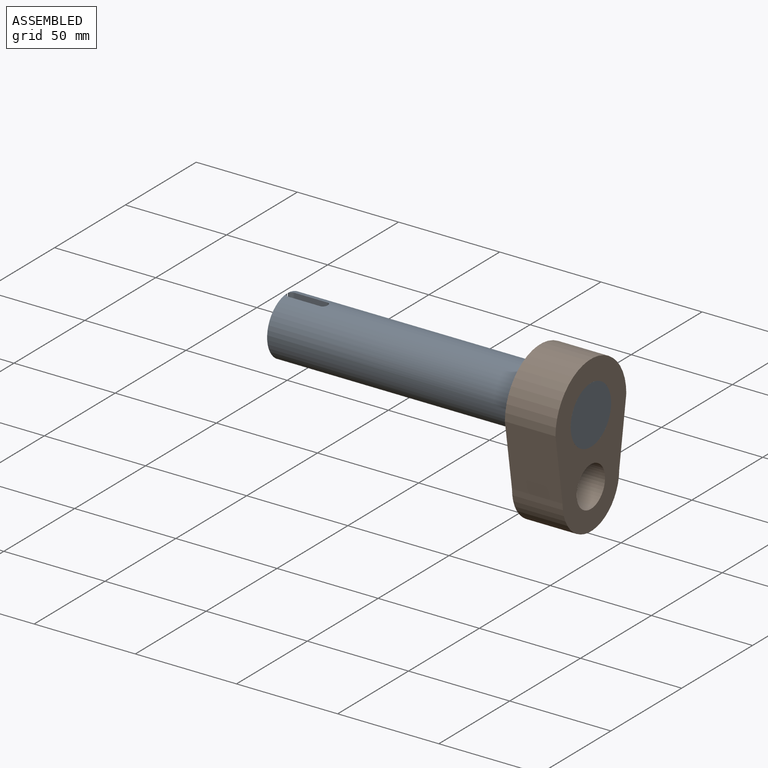
[diagram: assembled view]
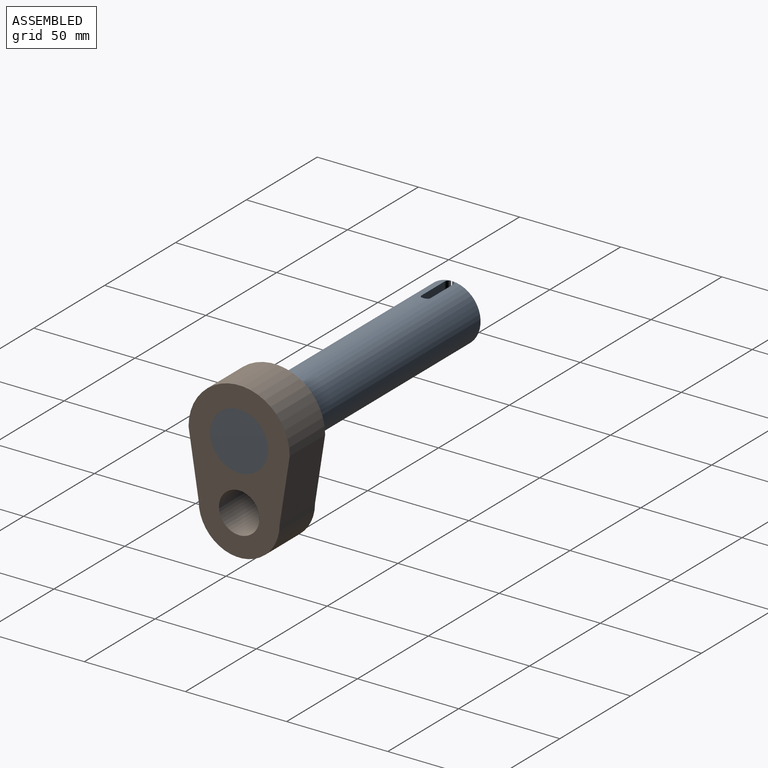
[diagram: assembled view, second angle]
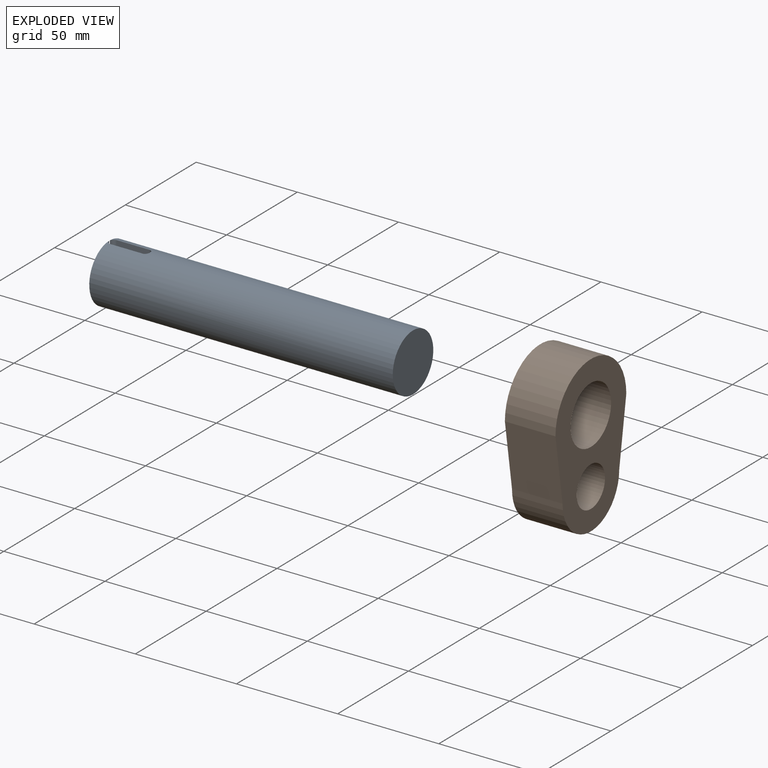
[diagram: exploded view]
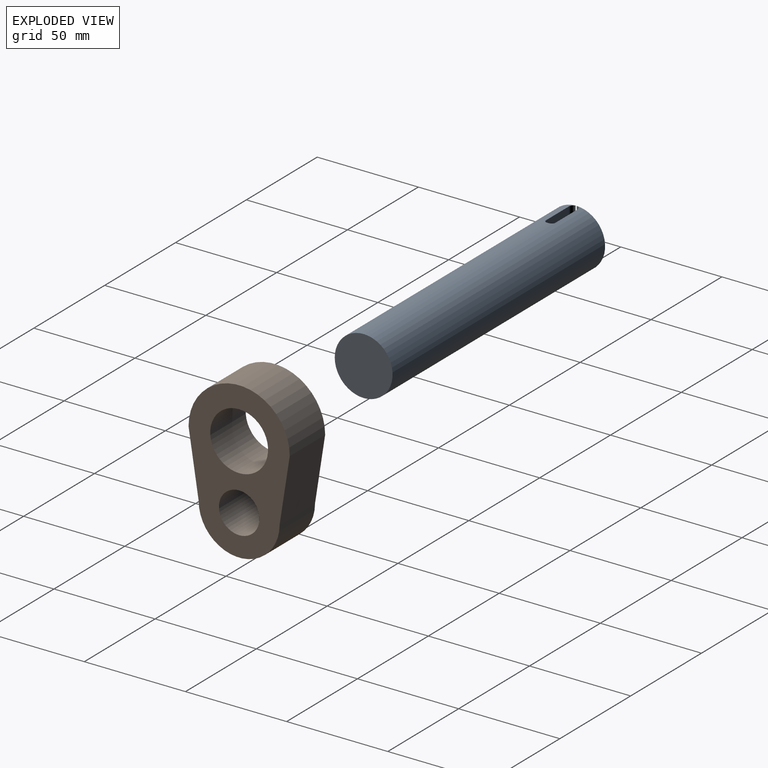
[diagram: exploded view, second angle]
ASSEMBLY  parts=2 mates=2
PART A: 11 faces, bbox 150x28.6x28.6 mm
  f0: cylinder r=14.3mm len=150mm, axis (-1,0,0), area 13390.5mm2, adj f1,f2,f3,f4,f5,f6,f7,f8
  f1: plane 28.6x28.6mm, normal (1,0,0), area 642.4mm2, adj f0
  f2: plane 28.6x28.6mm, normal (-1,0,0), area 639.9mm2, adj f0,f8,f9,f10
  f3: plane 5x0.5mm, normal (-1,0,0), area 2.5mm2, adj f0,f4,f7,f10
  f4: cylinder r=2mm len=5mm, axis (0,0,1), area 15.4mm2, adj f0,f3,f5,f10
  f5: plane 16x4.82mm, normal (0,-1,0), area 77.2mm2, adj f0,f4,f8,f10
  f6: plane 16x4.82mm, normal (0,1,0), area 77.2mm2, adj f0,f7,f9,f10
  f7: cylinder r=2mm len=5mm, axis (0,0,1), area 15.4mm2, adj f0,f3,f6,f10
  f8: cylinder r=2mm len=5mm, axis (0,0,1), area 15.4mm2, adj f0,f2,f5,f10
  f9: cylinder r=2mm len=5mm, axis (0,0,1), area 15.4mm2, adj f0,f2,f6,f10
  f10: plane 20x4.5mm, normal (0,0,1), area 86.6mm2, adj f2,f3,f4,f5,f6,f7,f8,f9
PART B: 8 faces, bbox 25x50x77 mm
  f0: cylinder r=25mm len=50mm, axis (-1,0,0), area 1963.5mm2, adj f1,f5,f6,f7
  f1: plane 32x25mm, normal (0,-0.99,-0.15), area 809.7mm2, adj f0,f2,f6,f7
  f2: cylinder r=20mm len=40mm, axis (-1,0,0), area 1570.8mm2, adj f1,f5,f6,f7
  f3: cylinder r=14.3mm len=28.6mm, axis (-1,0,0), area 2246.2mm2, adj f6,f7
  f4: cylinder r=10mm len=25mm, axis (-1,0,0), area 1570.8mm2, adj f6,f7
  f5: plane 32x25mm, normal (0,0.99,-0.15), area 809.7mm2, adj f0,f2,f6,f7
  f6: plane 77x50mm, normal (1,0,0), area 2093.5mm2, adj f0,f1,f2,f3,f4,f5
  f7: plane 77x50mm, normal (-1,0,0), area 2093.5mm2, adj f0,f1,f2,f3,f4,f5
PLACE A t=(36.95,47.38,8.69)mm
PLACE B t=(161.95,47.38,8.69)mm
MATE cylindrical A.f0 <-> B.f3  axis (-1,0,0) through (111.95,47.38,8.69)mm
MATE parallel B.f6 <-> A.f0  axis (1,0,0) through (186.95,47.38,-4.29)mm
